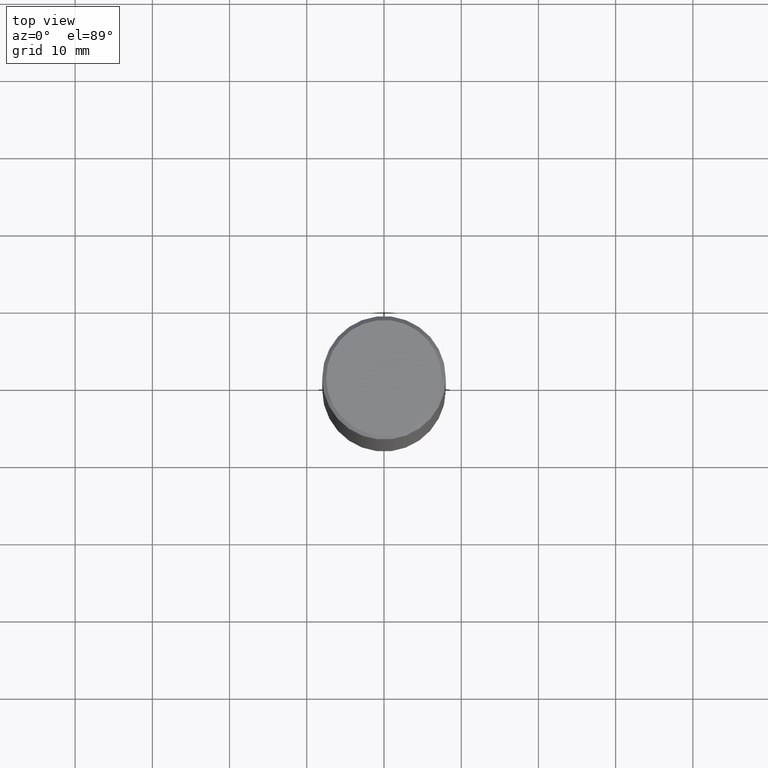
[diagram: clean part render]
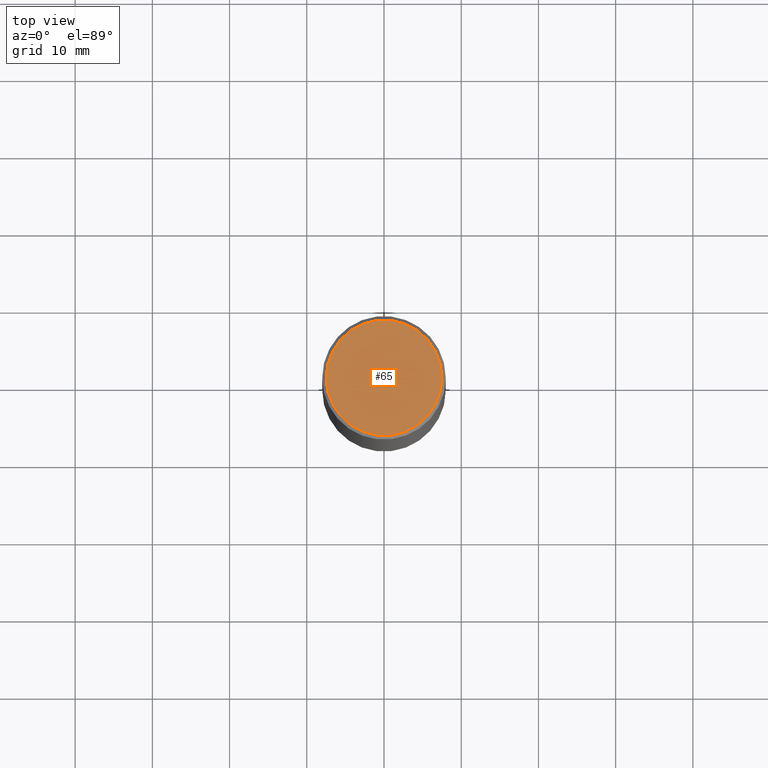
[diagram: same view with one face highlighted and labeled with its STEP entity id]
A machine part, top view. The second image highlights one B-rep face of the part: STEP entity #65.
In plain terms, the highlighted planar face has unit normal (0, -0, -1).
Its self-contained STEP definition (entity closure, byte-faithful):
#41 = VERTEX_POINT ( 'NONE', #410 ) ;
#56 = DIRECTION ( 'NONE',  ( -2.445468806185136597E-29, 3.491481338843145583E-15, 1.000000000000000000 ) ) ;
#65 = ADVANCED_FACE ( 'NONE', ( #132 ), #314, .F. ) ;
#111 = DIRECTION ( 'NONE',  ( -2.445468806185136597E-29, 3.491481338843145583E-15, 1.000000000000000000 ) ) ;
#132 = FACE_OUTER_BOUND ( 'NONE', #185, .T. ) ;
#142 = AXIS2_PLACEMENT_3D ( 'NONE', #208, #56, #354 ) ;
#185 = EDGE_LOOP ( 'NONE', ( #290, #230 ) ) ;
#198 = CARTESIAN_POINT ( 'NONE',  ( -0.2949499999999998234, 2.094539655171995318E-15, 1.792775245842027353E-16 ) ) ;
#207 = EDGE_CURVE ( 'NONE', #41, #259, #404, .T. ) ;
#208 = CARTESIAN_POINT ( 'NONE',  ( -4.384175940207923203E-45, 6.259441315597878405E-31, 1.792775245842172799E-16 ) ) ;
#230 = ORIENTED_EDGE ( 'NONE', *, *, #207, .T. ) ;
#243 = EDGE_CURVE ( 'NONE', #259, #41, #304, .T. ) ;
#254 = CARTESIAN_POINT ( 'NONE',  ( 2.059624841783562880E-15, 0.2949499999999998234, -9.401736585996764239E-16 ) ) ;
#259 = VERTEX_POINT ( 'NONE', #198 ) ;
#290 = ORIENTED_EDGE ( 'NONE', *, *, #243, .T. ) ;
#291 = AXIS2_PLACEMENT_3D ( 'NONE', #394, #111, #293 ) ;
#293 = DIRECTION ( 'NONE',  ( 1.000000000000000000, -6.982962677686267499E-15, 4.874125435057324435E-29 ) ) ;
#304 = CIRCLE ( 'NONE', #142, 0.2949499999999998234 ) ;
#314 = PLANE ( 'NONE',  #402 ) ;
#321 = DIRECTION ( 'NONE',  ( -1.000000000000000000, 6.982962677686265922E-15, -4.876176775795935793E-29 ) ) ;
#345 = DIRECTION ( 'NONE',  ( 2.438088387897960049E-29, -3.491481338843145188E-15, -1.000000000000000000 ) ) ;
#354 = DIRECTION ( 'NONE',  ( 1.000000000000000000, -6.982962677686267499E-15, 4.874125435057324435E-29 ) ) ;
#394 = CARTESIAN_POINT ( 'NONE',  ( -4.384175940207923203E-45, 6.259441315597878405E-31, 1.792775245842172799E-16 ) ) ;
#402 = AXIS2_PLACEMENT_3D ( 'NONE', #254, #345, #321 ) ;
#404 = CIRCLE ( 'NONE', #291, 0.2949499999999998234 ) ;
#410 = CARTESIAN_POINT ( 'NONE',  ( 0.2949499999999998234, -2.127023677808859286E-15, 1.792775245842319231E-16 ) ) ;